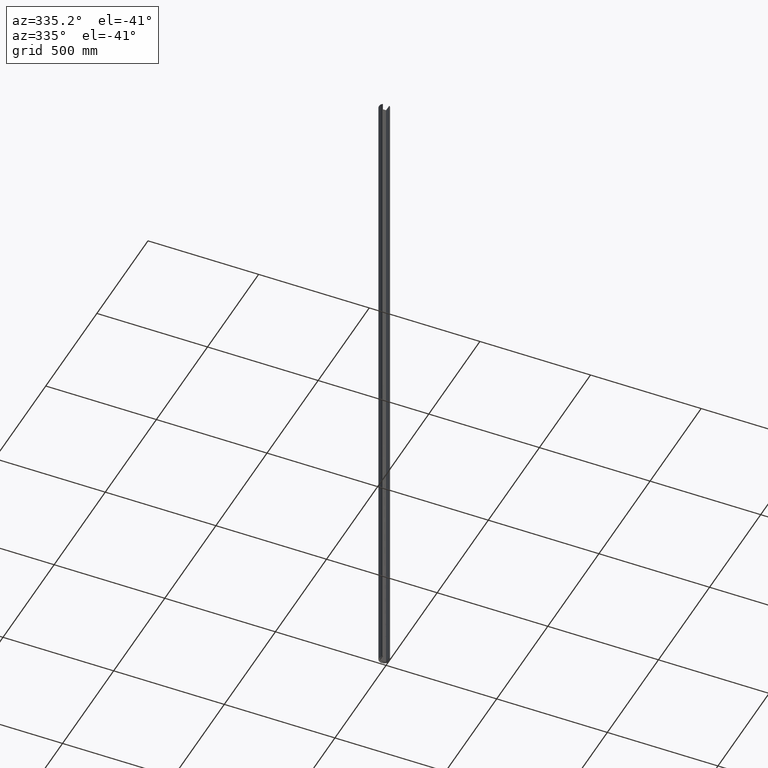
[diagram: clean part render]
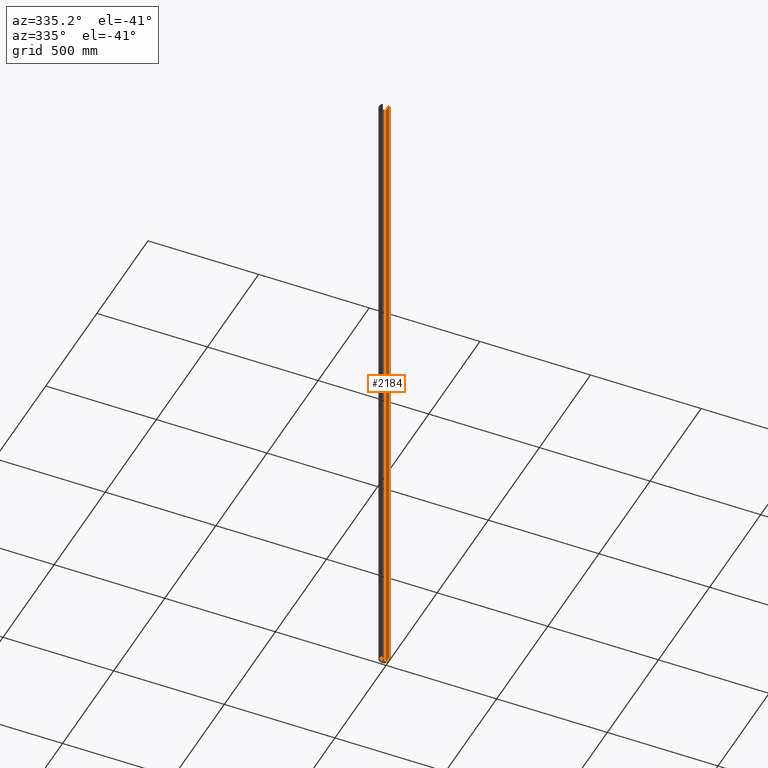
[diagram: same view with one face highlighted and labeled with its STEP entity id]
A machine part, auxiliary view. The second image highlights one B-rep face of the part: STEP entity #2184.
In plain terms, the highlighted planar face has unit normal (-1, 0, 0).
Its self-contained STEP definition (entity closure, byte-faithful):
#203 = CARTESIAN_POINT ( 'NONE',  ( 13.50000000000000178, 28.64806224760345899, -1500.000000000000000 ) ) ;
#1463 = EDGE_CURVE ( 'NONE', #3833, #8914, #6241, .T. ) ;
#2184 = ADVANCED_FACE ( 'NONE', ( #5003 ), #15011, .T. ) ;
#2217 = EDGE_CURVE ( 'NONE', #8914, #14980, #12978, .T. ) ;
#2924 = VECTOR ( 'NONE', #11164, 1000.000000000000000 ) ;
#3163 = EDGE_CURVE ( 'NONE', #5738, #14980, #3336, .T. ) ;
#3336 = LINE ( 'NONE', #7333, #12982 ) ;
#3833 = VERTEX_POINT ( 'NONE', #14118 ) ;
#3891 = VECTOR ( 'NONE', #15978, 1000.000000000000000 ) ;
#4100 = ORIENTED_EDGE ( 'NONE', *, *, #2217, .T. ) ;
#5003 = FACE_OUTER_BOUND ( 'NONE', #14149, .T. ) ;
#5738 = VERTEX_POINT ( 'NONE', #8363 ) ;
#6241 = LINE ( 'NONE', #8089, #16920 ) ;
#7211 = DIRECTION ( 'NONE',  ( 0.000000000000000000, 0.000000000000000000, 1.000000000000000000 ) ) ;
#7318 = EDGE_CURVE ( 'NONE', #3833, #5738, #15189, .T. ) ;
#7333 = CARTESIAN_POINT ( 'NONE',  ( 13.50000000000000178, 1.148062247603463426, 1500.000000000000000 ) ) ;
#7961 = ORIENTED_EDGE ( 'NONE', *, *, #7318, .F. ) ;
#8089 = CARTESIAN_POINT ( 'NONE',  ( 13.50000000000000178, 1.148062247603463426, -1500.000000000000000 ) ) ;
#8363 = CARTESIAN_POINT ( 'NONE',  ( 13.50000000000000178, 28.64806224760345899, 1500.000000000000000 ) ) ;
#8429 = CARTESIAN_POINT ( 'NONE',  ( 13.50000000000000178, 1.148062247603463426, -1500.000000000000000 ) ) ;
#8506 = CARTESIAN_POINT ( 'NONE',  ( 13.50000000000000178, 1.148062247603463426, -1500.000000000000000 ) ) ;
#8610 = DIRECTION ( 'NONE',  ( -1.000000000000000000, 0.000000000000000000, 0.000000000000000000 ) ) ;
#8914 = VERTEX_POINT ( 'NONE', #8429 ) ;
#9715 = CARTESIAN_POINT ( 'NONE',  ( 13.50000000000000178, 1.148062247603463426, -1500.000000000000000 ) ) ;
#10055 = ORIENTED_EDGE ( 'NONE', *, *, #3163, .F. ) ;
#10683 = DIRECTION ( 'NONE',  ( -0.000000000000000000, -1.000000000000000000, -0.000000000000000000 ) ) ;
#11164 = DIRECTION ( 'NONE',  ( 0.000000000000000000, 0.000000000000000000, 1.000000000000000000 ) ) ;
#11171 = CARTESIAN_POINT ( 'NONE',  ( 13.50000000000000178, 1.148062247603463426, 1500.000000000000000 ) ) ;
#11229 = ORIENTED_EDGE ( 'NONE', *, *, #1463, .T. ) ;
#12811 = DIRECTION ( 'NONE',  ( -0.000000000000000000, -1.000000000000000000, -0.000000000000000000 ) ) ;
#12856 = AXIS2_PLACEMENT_3D ( 'NONE', #8506, #8610, #7211 ) ;
#12978 = LINE ( 'NONE', #9715, #2924 ) ;
#12982 = VECTOR ( 'NONE', #12811, 1000.000000000000000 ) ;
#14118 = CARTESIAN_POINT ( 'NONE',  ( 13.50000000000000178, 28.64806224760345899, -1500.000000000000000 ) ) ;
#14149 = EDGE_LOOP ( 'NONE', ( #10055, #7961, #11229, #4100 ) ) ;
#14980 = VERTEX_POINT ( 'NONE', #11171 ) ;
#15011 = PLANE ( 'NONE',  #12856 ) ;
#15189 = LINE ( 'NONE', #203, #3891 ) ;
#15978 = DIRECTION ( 'NONE',  ( 0.000000000000000000, 0.000000000000000000, 1.000000000000000000 ) ) ;
#16920 = VECTOR ( 'NONE', #10683, 1000.000000000000000 ) ;